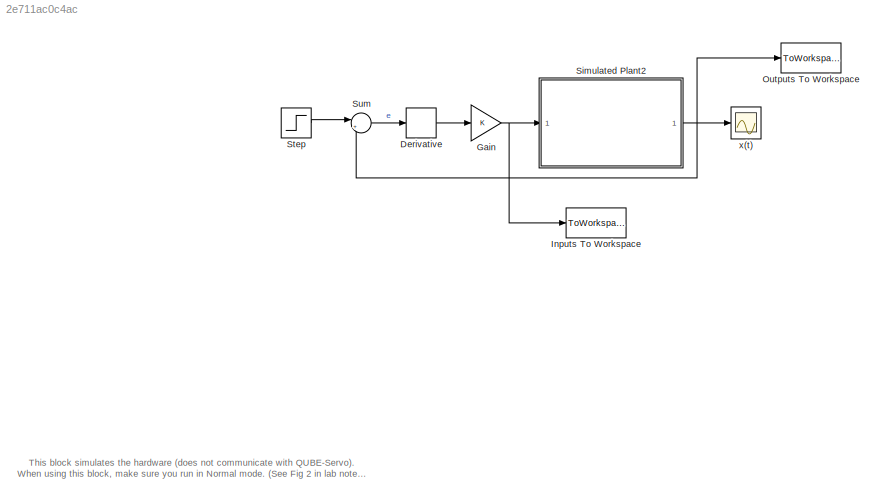
MODEL slx_2e711ac0c4ac
KIND model
CONFIG AbsTol = auto
CONFIG FixedStep = 0.002
CONFIG MaxStep = auto
CONFIG MinStep = auto
CONFIG RelTol = 1e-3
CONFIG SampleTimeConstraint = Unconstrained
CONFIG Solver = ode1
CONFIG SolverMode = Auto
CONFIG SolverName = ode1
CONFIG StartTime = 0.0
CONFIG StopTime = 20
BLOCK [Derivative] Derivative
  CoefficientInTFapproximation = 50
BLOCK [Gain] Gain
  OutDataTypeStr = Inherit: Inherit via internal rule
  ParamDataTypeStr = Inherit: Inherit via internal rule
  SaturateOnIntegerOverflow = off
BLOCK [ToWorkspace] Inputs To Workspace
  FixptAsFi = on
  MaxDataPoints = inf
  Ports = [1]
  SampleTime = -1
  Save2DSignal = 3-D array (concatenate along third dimension)
  SaveFormat = Structure With Time
  VariableName = u_in
BLOCK [ToWorkspace] Outputs To Workspace
  FixptAsFi = on
  MaxDataPoints = inf
  Ports = [1]
  SampleTime = -1
  Save2DSignal = 3-D array (concatenate along third dimension)
  SaveFormat = Structure With Time
  VariableName = x_out
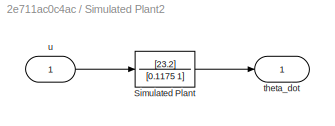
BLOCK [SubSystem] Simulated Plant2
  Permissions = NoReadOrWrite
  Ports = [1, 1]
  RequestExecContextInheritance = off
  Variant = off
BLOCK [TransferFcn] Simulated Plant2/Simulated Plant
  Denominator = [0.1175 1]
  Numerator = [23.2]
BLOCK [Outport] Simulated Plant2/theta_dot
  IconDisplay = Port number
BLOCK [Inport] Simulated Plant2/u
  IconDisplay = Port number
BLOCK [Step] Step
  SampleTime = 0
  Time = 0
BLOCK [Sum] Sum
  IconShape = round
  InputSameDT = off
  Inputs = |+-
  OutDataTypeStr = Inherit: Inherit via internal rule
  Ports = [2, 1]
  SaturateOnIntegerOverflow = off
BLOCK [Scope] x(t)
  Ports = [1]
  ScopeSpecificationString = Simulink.scopes.TimeScopeBlockCfg('CurrentConfiguration', extmgr.ConfigurationSet(extmgr.Configuration('Core','General UI',true),extmgr.Configuration('Core','Source UI',true),extmgr.Configuration('Sources','WiredSimulink',true),extmgr.Configuration('Visuals','Time Domain',true,'SerializedDisplays',{struct('MinYLimReal','-1.30038','MaxYLimReal','0.60837','YLabelReal','','MinYLimMag','0.00000','MaxY...<+1410ch>
ANNOTATION (root): This block simulates the hardware (does not communicate with QUBE-Servo). When using this block, make sure you run in Normal mode. (See Fig 2 in lab notes)
LINE Derivative:1 -> Gain:1
NET Gain:1 -> Inputs To Workspace:1, Simulated Plant2:1
LINE Simulated Plant2/Simulated Plant:1 -> Simulated Plant2/theta_dot:1
LINE Simulated Plant2/u:1 -> Simulated Plant2/Simulated Plant:1
NET Simulated Plant2:1 -> Outputs To Workspace:1, Sum:2, x(t):1
LINE Step:1 -> Sum:1
LINE Sum:1 -> Derivative:1
note: NET lines group one-source signal fan-out (src -> all destinations, sorted); 1:1 wires keep LINE
